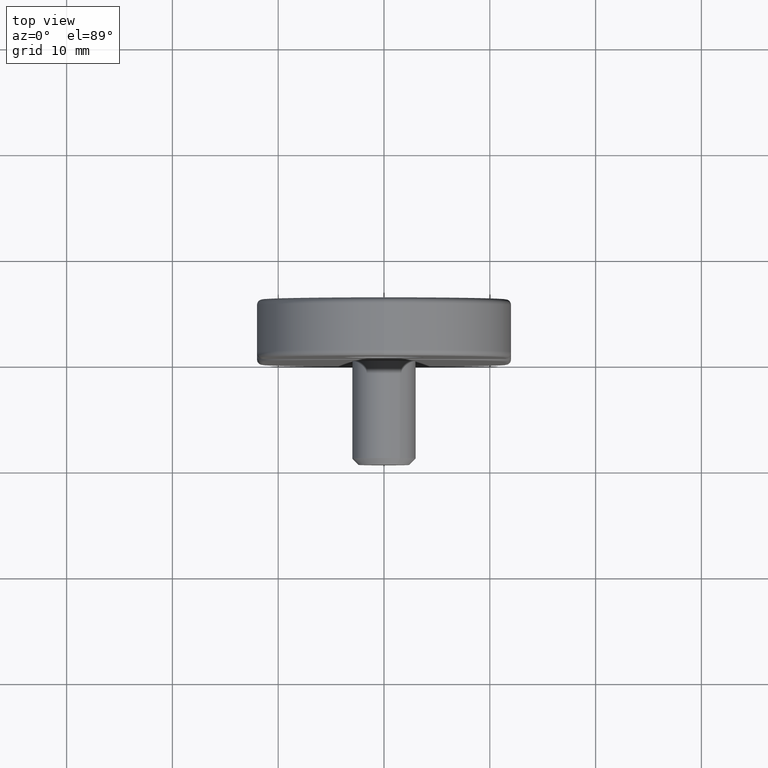
[diagram: clean part render]
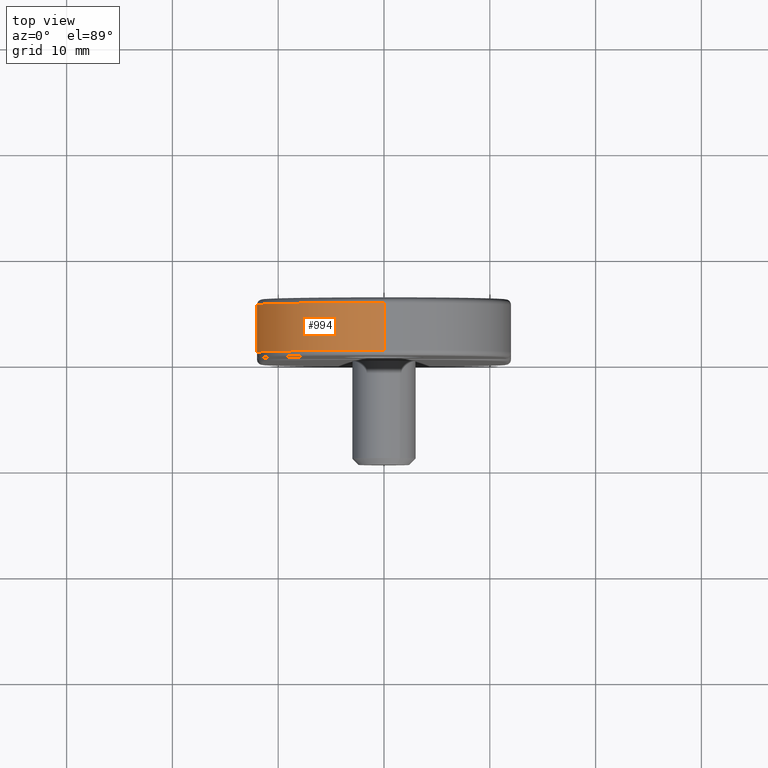
[diagram: same view with one face highlighted and labeled with its STEP entity id]
A machine part, top view. The second image highlights one B-rep face of the part: STEP entity #994.
In plain terms, the highlighted cylindrical surface (partial cylindrical patch) has radius 12 mm, axis along (0, 1, 0).
Its self-contained STEP definition (entity closure, byte-faithful):
#62 = CARTESIAN_POINT ( 'NONE',  ( 0.000000000000000000, 4.999999999999999112, 6.999999999999999112 ) ) ;
#263 = CARTESIAN_POINT ( 'NONE',  ( 0.000000000000000000, 0.000000000000000000, 6.999999999999999112 ) ) ;
#994 = ADVANCED_FACE ( 'NONE', ( #15324 ), #5699, .T. ) ;
#1509 = DIRECTION ( 'NONE',  ( -0.000000000000000000, 1.000000000000000000, -0.000000000000000000 ) ) ;
#2066 = VECTOR ( 'NONE', #13278, 1000.000000000000000 ) ;
#2724 = CARTESIAN_POINT ( 'NONE',  ( -12.00000000000000000, 4.999999999999999112, 6.999999999999999112 ) ) ;
#2844 = DIRECTION ( 'NONE',  ( 0.000000000000000000, 1.000000000000000000, 0.000000000000000000 ) ) ;
#3129 = AXIS2_PLACEMENT_3D ( 'NONE', #62, #10868, #13366 ) ;
#3604 = DIRECTION ( 'NONE',  ( 0.000000000000000000, 0.000000000000000000, 1.000000000000000000 ) ) ;
#4038 = DIRECTION ( 'NONE',  ( 0.000000000000000000, 0.000000000000000000, 1.000000000000000000 ) ) ;
#5542 = EDGE_CURVE ( 'NONE', #8715, #10421, #9628, .T. ) ;
#5699 = CYLINDRICAL_SURFACE ( 'NONE', #11999, 12.00000000000000000 ) ;
#6073 = EDGE_CURVE ( 'NONE', #12438, #8715, #6387, .T. ) ;
#6387 = CIRCLE ( 'NONE', #15212, 12.00000000000000000 ) ;
#8715 = VERTEX_POINT ( 'NONE', #13855 ) ;
#8828 = CARTESIAN_POINT ( 'NONE',  ( 0.000000000000000000, 0.000000000000000000, 19.00000000000000355 ) ) ;
#9527 = CARTESIAN_POINT ( 'NONE',  ( -12.00000000000000000, 5.500000000000000000, 6.999999999999999112 ) ) ;
#9628 = LINE ( 'NONE', #8828, #2066 ) ;
#9647 = VERTEX_POINT ( 'NONE', #2724 ) ;
#9838 = ORIENTED_EDGE ( 'NONE', *, *, #15175, .T. ) ;
#10372 = EDGE_LOOP ( 'NONE', ( #10471, #10820, #14269, #9838 ) ) ;
#10421 = VERTEX_POINT ( 'NONE', #14556 ) ;
#10471 = ORIENTED_EDGE ( 'NONE', *, *, #14647, .F. ) ;
#10820 = ORIENTED_EDGE ( 'NONE', *, *, #6073, .T. ) ;
#10868 = DIRECTION ( 'NONE',  ( -0.000000000000000000, -1.000000000000000000, -0.000000000000000000 ) ) ;
#11999 = AXIS2_PLACEMENT_3D ( 'NONE', #263, #2844, #4038 ) ;
#12377 = CARTESIAN_POINT ( 'NONE',  ( -12.00000000000000000, 0.5000000000000004441, 6.999999999999999112 ) ) ;
#12438 = VERTEX_POINT ( 'NONE', #12377 ) ;
#13158 = CARTESIAN_POINT ( 'NONE',  ( 0.000000000000000000, 0.5000000000000000000, 6.999999999999999112 ) ) ;
#13278 = DIRECTION ( 'NONE',  ( -0.000000000000000000, 1.000000000000000000, -0.000000000000000000 ) ) ;
#13366 = DIRECTION ( 'NONE',  ( 0.000000000000000000, 0.000000000000000000, 1.000000000000000000 ) ) ;
#13808 = LINE ( 'NONE', #9527, #14161 ) ;
#13855 = CARTESIAN_POINT ( 'NONE',  ( 0.000000000000000000, 0.5000000000000004441, 19.00000000000000355 ) ) ;
#13920 = CIRCLE ( 'NONE', #3129, 12.00000000000000000 ) ;
#14161 = VECTOR ( 'NONE', #1509, 1000.000000000000000 ) ;
#14269 = ORIENTED_EDGE ( 'NONE', *, *, #5542, .T. ) ;
#14383 = DIRECTION ( 'NONE',  ( 0.000000000000000000, 1.000000000000000000, 0.000000000000000000 ) ) ;
#14556 = CARTESIAN_POINT ( 'NONE',  ( 0.000000000000000000, 4.999999999999999112, 19.00000000000000355 ) ) ;
#14647 = EDGE_CURVE ( 'NONE', #12438, #9647, #13808, .T. ) ;
#15175 = EDGE_CURVE ( 'NONE', #10421, #9647, #13920, .T. ) ;
#15212 = AXIS2_PLACEMENT_3D ( 'NONE', #13158, #14383, #3604 ) ;
#15324 = FACE_OUTER_BOUND ( 'NONE', #10372, .T. ) ;